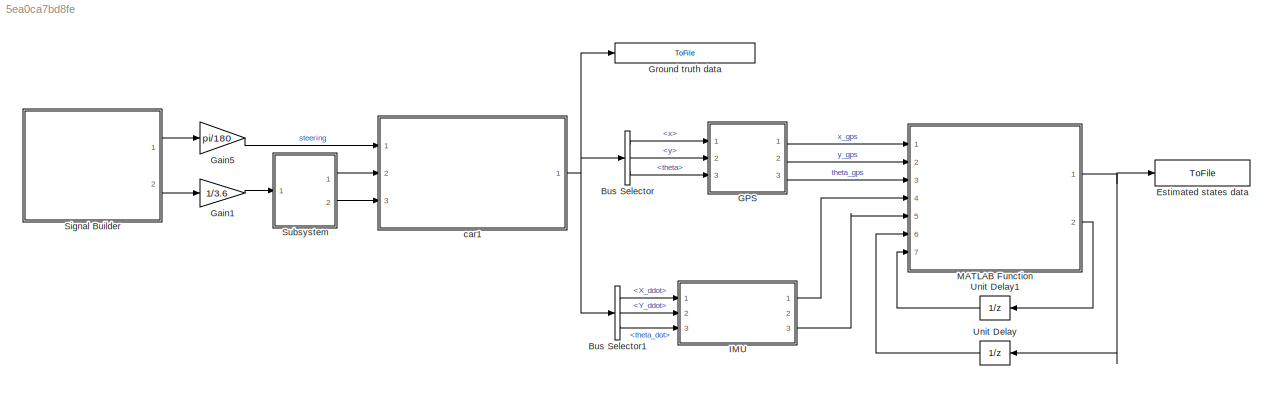
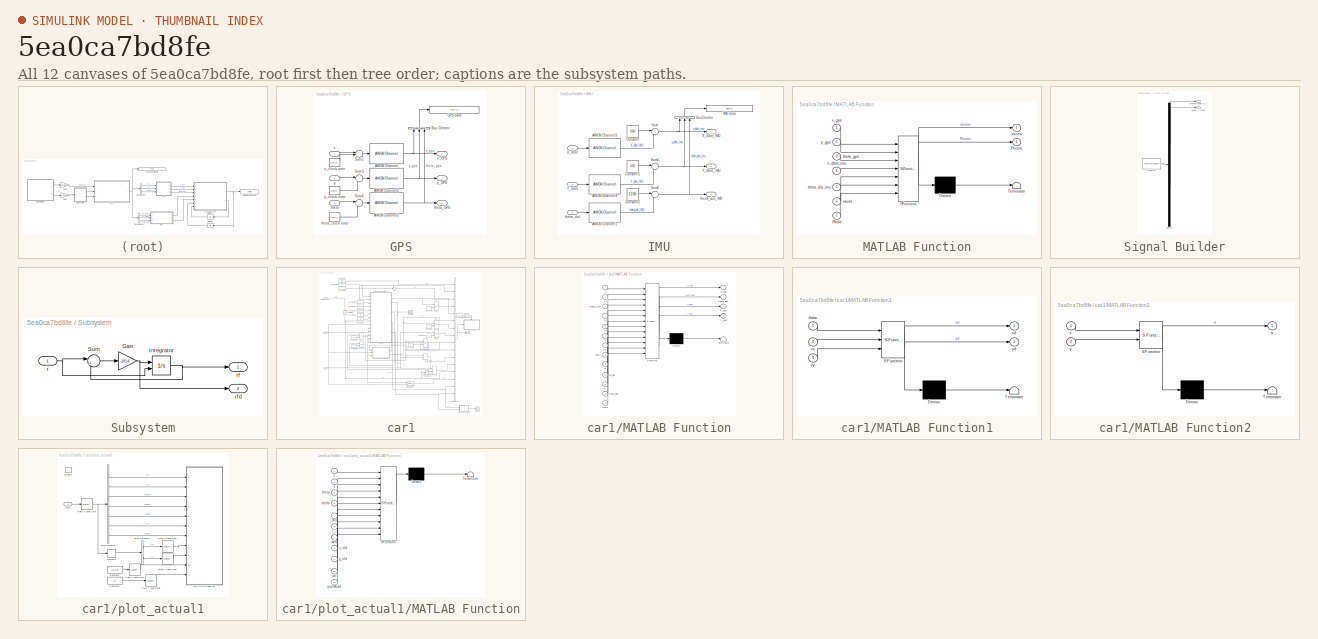
[diagram: thumbnail index - all 12 canvases of the model, root first then tree order]
MODEL slx_5ea0ca7bd8fe
KIND model
CONFIG AbsTol = auto
CONFIG EnableMultiTasking = on
CONFIG FixedStep = 0.1
CONFIG MaxStep = 0.05
CONFIG MinStep = 1e-5
CONFIG RelTol = 1e-6
CONFIG SampleTimeConstraint = Unconstrained
CONFIG Solver = ode45
CONFIG SolverName = ode45
CONFIG StartTime = 0.0
CONFIG StopFcn = run('CTRA_plotter.m');
CONFIG StopTime = 60
WORKSPACE source: MAT-file member
WORKSPACE B = 1.5289
BLOCK [BusSelector] Bus Selector
  OutputAsBus = off
  OutputSignals = x,y,theta
  Ports = [1, 3]
BLOCK [BusSelector] Bus Selector1
  OutputAsBus = off
  OutputSignals = X_ddot,Y_ddot,theta_dot
  Ports = [1, 3]
BLOCK [ToFile] Estimated states data
  Filename = EKF_Estimator.mat
  MatrixName = EKF
  Ports = [1]
  SampleTime = 1/50
  SaveFormat = Timeseries
BLOCK [SubSystem] GPS
  Ports = [3, 3]
  RequestExecContextInheritance = off
BLOCK [Reference] GPS/AWGN Channel  REF=commchan3/AWGN
Channel
  Ports = [1, 1]
  SourceBlock = commchan3/AWGN\nChannel
  SourceProductBaseCode = CM
  SourceProductName = Communications System Toolbox
  SourceType = AWGN Channel
  UserDataPersistent = on
BLOCK [Reference] GPS/AWGN Channel1  REF=commchan3/AWGN
Channel
  Ports = [1, 1]
  SourceBlock = commchan3/AWGN\nChannel
  SourceProductBaseCode = CM
  SourceProductName = Communications System Toolbox
  SourceType = AWGN Channel
  UserDataPersistent = on
BLOCK [Reference] GPS/AWGN Channel2  REF=commchan3/AWGN
Channel
  Ports = [1, 1]
  SourceBlock = commchan3/AWGN\nChannel
  SourceProductBaseCode = CM
  SourceProductName = Communications System Toolbox
  SourceType = AWGN Channel
  UserDataPersistent = on
BLOCK [BusCreator] GPS/Bus Creator
  DisplayOption = bar
  InheritFromInputs = on
  Inputs = 3
  Ports = [3, 1]
BLOCK [ToFile] GPS/GPS data
  Filename = GPS_logfile.mat
  MatrixName = GPS
  Ports = [1]
  SampleTime = 1/50
  SaveFormat = Timeseries
BLOCK [Sum] GPS/Sum2
  IconShape = round
  InputSameDT = off
  Inputs = |+-
  OutDataTypeStr = Inherit: Inherit via internal rule
  Ports = [2, 1]
  SaturateOnIntegerOverflow = off
BLOCK [Sum] GPS/Sum3
  IconShape = round
  InputSameDT = off
  Inputs = |+-
  OutDataTypeStr = Inherit: Inherit via internal rule
  Ports = [2, 1]
  SaturateOnIntegerOverflow = off
BLOCK [Sum] GPS/Sum4
  IconShape = round
  InputSameDT = off
  Inputs = |+-
  OutDataTypeStr = Inherit: Inherit via internal rule
  Ports = [2, 1]
  SaturateOnIntegerOverflow = off
BLOCK [Inport] GPS/theta
  IconDisplay = Port number
  Port = 3
BLOCK [Outport] GPS/theta_GPS
  IconDisplay = Port number
  Port = 3
BLOCK [UniformRandomNumber] GPS/theta_clock error
  Maximum = 1e-9
  Minimum = 0
  SampleTime = 3
BLOCK [Inport] GPS/x
  IconDisplay = Port number
BLOCK [Outport] GPS/x_GPS
  IconDisplay = Port number
BLOCK [UniformRandomNumber] GPS/x_clock error
  Maximum = 1e-9
  Minimum = 0
  SampleTime = 3
BLOCK [Inport] GPS/y
  IconDisplay = Port number
  Port = 2
BLOCK [Outport] GPS/y_GPS
  IconDisplay = Port number
  Port = 2
BLOCK [UniformRandomNumber] GPS/y_clock error
  Maximum = 1e-9
  Minimum = 0
  SampleTime = 3
BLOCK [Gain] Gain1
  Gain = 1/3.6
  OutDataTypeStr = Inherit: Inherit via internal rule
  ParamDataTypeStr = Inherit: Inherit via internal rule
  SaturateOnIntegerOverflow = off
BLOCK [Gain] Gain5
  Gain = pi/180
  OutDataTypeStr = Inherit: Inherit via internal rule
  ParamDataTypeStr = Inherit: Inherit via internal rule
  SaturateOnIntegerOverflow = off
BLOCK [ToFile] Ground truth data
  Filename = groundtruth_logfile.mat
  MatrixName = GNDT
  Ports = [1]
  SampleTime = 1/50
  SaveFormat = Timeseries
BLOCK [SubSystem] IMU
  Ports = [3, 3]
  RequestExecContextInheritance = off
BLOCK [Reference] IMU/AWGN Channel1  REF=commchan3/AWGN
Channel
  Ports = [1, 1]
  SourceBlock = commchan3/AWGN\nChannel
  SourceProductBaseCode = CM
  SourceProductName = Communications System Toolbox
  SourceType = AWGN Channel
  UserDataPersistent = on
BLOCK [Reference] IMU/AWGN Channel3  REF=commchan3/AWGN
Channel
  Ports = [1, 1]
  SourceBlock = commchan3/AWGN\nChannel
  SourceProductBaseCode = CM
  SourceProductName = Communications System Toolbox
  SourceType = AWGN Channel
  UserDataPersistent = on
BLOCK [Reference] IMU/AWGN Channel4  REF=commchan3/AWGN
Channel
  Ports = [1, 1]
  SourceBlock = commchan3/AWGN\nChannel
  SourceProductBaseCode = CM
  SourceProductName = Communications System Toolbox
  SourceType = AWGN Channel
  UserDataPersistent = on
BLOCK [BusCreator] IMU/Bus Creator
  DisplayOption = bar
  InheritFromInputs = on
  Inputs = 3
  Ports = [3, 1]
BLOCK [Constant] IMU/Constant
  Value = 0.04
BLOCK [Constant] IMU/Constant1
  Value = 0.03
BLOCK [Constant] IMU/Constant2
  Value = 0.2/100
BLOCK [ToFile] IMU/IMU data
  Filename = IMU_logfile.mat
  MatrixName = IMU
  Ports = [1]
  SampleTime = 1/50
  SaveFormat = Timeseries
BLOCK [Sum] IMU/Sum
  IconShape = round
  InputSameDT = off
  Inputs = |++
  OutDataTypeStr = Inherit: Inherit via internal rule
  Ports = [2, 1]
  SaturateOnIntegerOverflow = off
BLOCK [Sum] IMU/Sum1
  IconShape = round
  InputSameDT = off
  Inputs = |++
  OutDataTypeStr = Inherit: Inherit via internal rule
  Ports = [2, 1]
  SaturateOnIntegerOverflow = off
BLOCK [Sum] IMU/Sum2
  IconShape = round
  InputSameDT = off
  Inputs = |++
  OutDataTypeStr = Inherit: Inherit via internal rule
  Ports = [2, 1]
  SaturateOnIntegerOverflow = off
BLOCK [Inport] IMU/X_ddot
  IconDisplay = Port number
BLOCK [Outport] IMU/X_ddot_IMU
  IconDisplay = Port number
BLOCK [Inport] IMU/Y_ddot
  IconDisplay = Port number
  Port = 2
BLOCK [Outport] IMU/Y_ddot_IMU
  IconDisplay = Port number
  Port = 2
BLOCK [Inport] IMU/theta_dot
  IconDisplay = Port number
  Port = 3
BLOCK [Outport] IMU/theta_dot_IMU
  IconDisplay = Port number
  Port = 3
BLOCK [SubSystem] MATLAB Function
  ErrorFcn = Stateflow.Translate.translate
  PermitHierarchicalResolution = ExplicitOnly
  Ports = [7, 2]
  RequestExecContextInheritance = off
  SFBlockType = MATLAB Function
  TreatAsAtomicUnit = on
BLOCK [Demux] MATLAB Function/ Demux 
  Outputs = 1
  Ports = [1, 1]
BLOCK [S-Function] MATLAB Function/ SFunction 
  EnableBusSupport = on
  FunctionName = sf_sfun
  PortCounts = [7 3]
  Ports = [7, 3]
  SFcnIsStateOwnerBlock = off
  SFunctionDeploymentMode = off
  Tag = Stateflow S-Function CTRA_LinearBicycle 3
BLOCK [Terminator] MATLAB Function/ Terminator 
BLOCK [Outport] MATLAB Function/Pknew
  IconDisplay = Port number
  Port = 2
BLOCK [Inport] MATLAB Function/Pkold
  IconDisplay = Port number
  Port = 7
BLOCK [Inport] MATLAB Function/theta_dot_imu
  IconDisplay = Port number
  Port = 5
BLOCK [Inport] MATLAB Function/theta_gps
  IconDisplay = Port number
  Port = 3
BLOCK [Inport] MATLAB Function/x_ddot_imu
  IconDisplay = Port number
  Port = 4
BLOCK [Inport] MATLAB Function/x_gps
  IconDisplay = Port number
BLOCK [Outport] MATLAB Function/xknew
  IconDisplay = Port number
BLOCK [Inport] MATLAB Function/xkold
  IconDisplay = Port number
  Port = 6
BLOCK [Inport] MATLAB Function/y_gps
  IconDisplay = Port number
  Port = 2
BLOCK [SubSystem] Signal Builder
  ClipboardFcn = sigbuilder_block('clipboard');
  CloseFcn = sigbuilder_block('close');
  ContinueFcn = sigbuilder_block('continue');
  CopyFcn = sigbuilder_block('copy');
  DeleteFcn = sigbuilder_block('delete');
  LoadFcn = sigbuilder_block('load');
  MaskHideContents = on
  ModelCloseFcn = sigbuilder_block('modelClose');
  NameChangeFcn = sigbuilder_block('namechange');
  OpenFcn = sigbuilder_block('open',[9 6 942 506.25 ]);
  PauseFcn = sigbuilder_block('pause');
  Ports = [0, 2]
  PreSaveFcn = sigbuilder_block('preSave');
  RequestExecContextInheritance = off
  StartFcn = sigbuilder_block('start');
  StopFcn = sigbuilder_block('stop');
  Tag = STV Subsys
BLOCK [Demux] Signal Builder/Demux
  Outputs = 2
  Ports = [1, 2]
  Tag = STV Demux
BLOCK [FromWorkspace] Signal Builder/FromWs
  SampleTime = 0
  Tag = STV FromWs
  VariableName = tuvar
  ZeroCross = on
BLOCK [Outport] Signal Builder/steering angle δ [°]
  IconDisplay = Port number
  Tag = STV Outport
BLOCK [Outport] Signal Builder/velocity v [kph]
  IconDisplay = Port number
  Port = 2
  Tag = STV Outport
BLOCK [SubSystem] Subsystem
  Ports = [1, 2]
  RequestExecContextInheritance = off
BLOCK [Gain] Subsystem/Gain
  Gain = 1/0.4
  OutDataTypeStr = Inherit: Inherit via internal rule
  ParamDataTypeStr = Inherit: Inherit via internal rule
  SaturateOnIntegerOverflow = off
BLOCK [Integrator] Subsystem/Integrator
  InitialConditionSource = external
  Ports = [2, 1]
BLOCK [Sum] Subsystem/Sum
  IconShape = round
  InputSameDT = off
  Inputs = |+-
  OutDataTypeStr = Inherit: Inherit via internal rule
  Ports = [2, 1]
  SaturateOnIntegerOverflow = off
BLOCK [Inport] Subsystem/r
  IconDisplay = Port number
BLOCK [Outport] Subsystem/rf
  IconDisplay = Port number
BLOCK [Outport] Subsystem/rfd
  IconDisplay = Port number
  Port = 2
BLOCK [UnitDelay] Unit Delay
  InitialCondition = [0, 0, 0.1, 1, 0.1, 0]'
  InputProcessing = Elements as channels (sample based)
  SampleTime = -1
BLOCK [UnitDelay] Unit Delay1
  InitialCondition = diag([1000000, 1000000, 10, 10, 10, 10],0)
  InputProcessing = Elements as channels (sample based)
  SampleTime = -1
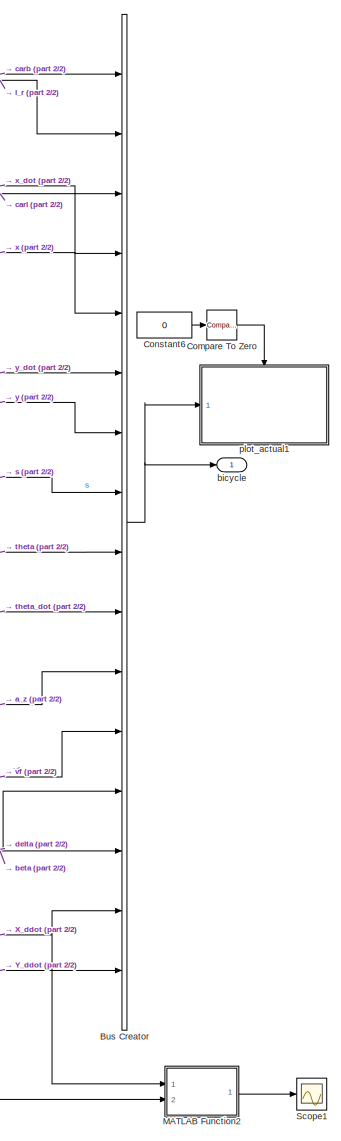
[diagram: car1 - part 1/2, right side, full height]
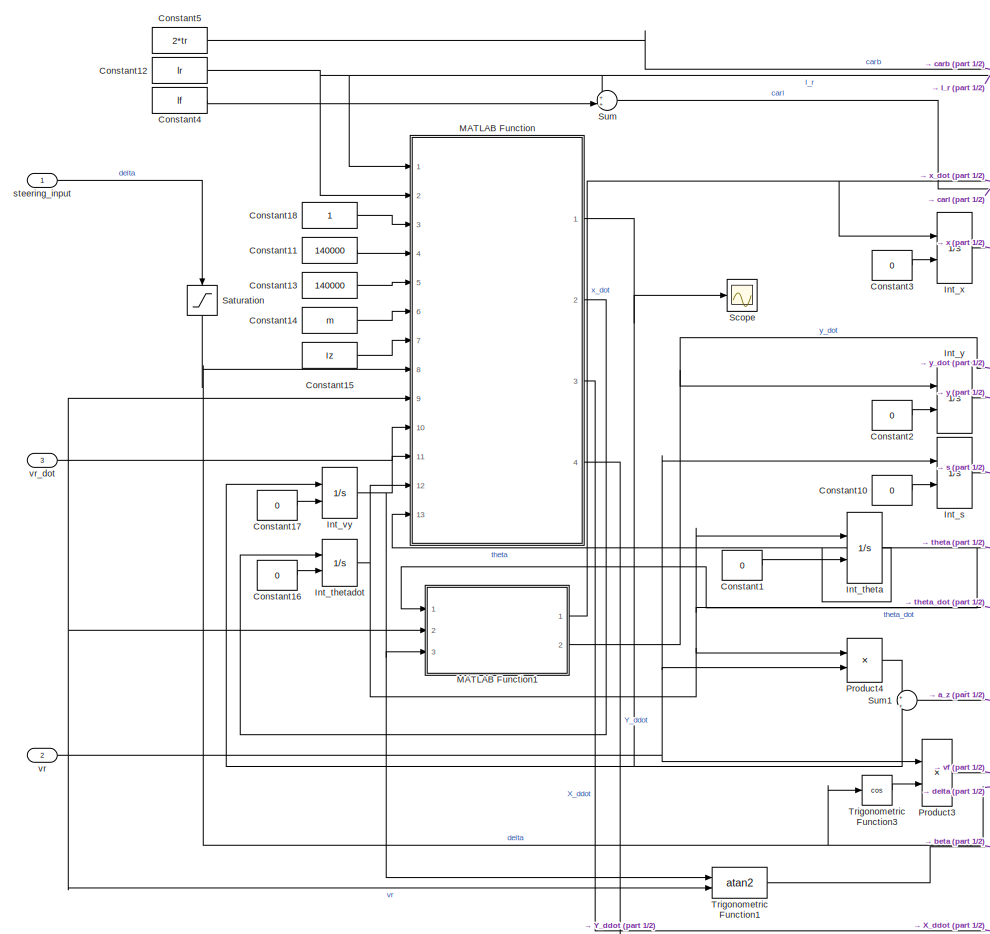
[diagram: car1 - part 2/2, most of the canvas]
BLOCK [SubSystem] car1
  Ports = [3, 1]
  RequestExecContextInheritance = off
BLOCK [BusCreator] car1/Bus Creator
  DisplayOption = bar
  InheritFromInputs = on
  Inputs = 16
  Ports = [16, 1]
BLOCK [Reference] car1/Compare To Zero  REF=simulink/Logic and Bit
Operations/Compare
To Zero
  Ports = [1, 1]
  SourceBlock = simulink/Logic and Bit\nOperations/Compare\nTo Zero
  SourceProductBaseCode = SL
  SourceProductName = Simulink
  SourceType = Compare To Zero
BLOCK [Constant] car1/Constant1
  Value = 0
BLOCK [Constant] car1/Constant10
  Value = 0
BLOCK [Constant] car1/Constant11
  Value = 140000
BLOCK [Constant] car1/Constant12
  Value = lr
BLOCK [Constant] car1/Constant13
  Value = 140000
BLOCK [Constant] car1/Constant14
  Value = m
BLOCK [Constant] car1/Constant15
  Value = Iz
BLOCK [Constant] car1/Constant16
  Value = 0
BLOCK [Constant] car1/Constant17
  Value = 0
BLOCK [Constant] car1/Constant18
BLOCK [Constant] car1/Constant2
  Value = 0
BLOCK [Constant] car1/Constant3
  Value = 0
BLOCK [Constant] car1/Constant4
  Value = lf
BLOCK [Constant] car1/Constant5
  Value = 2*tr
BLOCK [Constant] car1/Constant6
  Value = 0
BLOCK [Integrator] car1/Int_s
  InitialConditionSource = external
  Ports = [2, 1]
BLOCK [Integrator] car1/Int_theta
  InitialConditionSource = external
  Ports = [2, 1]
BLOCK [Integrator] car1/Int_thetadot
  InitialConditionSource = external
  Ports = [2, 1]
BLOCK [Integrator] car1/Int_vy
  InitialConditionSource = external
  Ports = [2, 1]
BLOCK [Integrator] car1/Int_x
  InitialConditionSource = external
  Ports = [2, 1]
BLOCK [Integrator] car1/Int_y
  InitialConditionSource = external
  Ports = [2, 1]
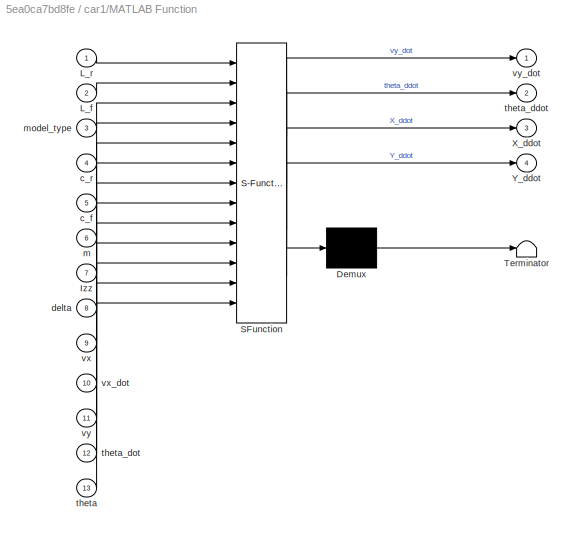
BLOCK [SubSystem] car1/MATLAB Function
  ErrorFcn = Stateflow.Translate.translate
  PermitHierarchicalResolution = ExplicitOnly
  Ports = [13, 4]
  RequestExecContextInheritance = off
  SFBlockType = MATLAB Function
  TreatAsAtomicUnit = on
BLOCK [Demux] car1/MATLAB Function/ Demux 
  Outputs = 1
  Ports = [1, 1]
BLOCK [S-Function] car1/MATLAB Function/ SFunction 
  EnableBusSupport = on
  FunctionName = sf_sfun
  PortCounts = [13 5]
  Ports = [13, 5]
  SFcnIsStateOwnerBlock = off
  SFunctionDeploymentMode = off
  Tag = Stateflow S-Function CTRA_LinearBicycle 1
BLOCK [Terminator] car1/MATLAB Function/ Terminator 
BLOCK [Inport] car1/MATLAB Function/Izz
  IconDisplay = Port number
  Port = 7
BLOCK [Inport] car1/MATLAB Function/L_f
  IconDisplay = Port number
  Port = 2
BLOCK [Inport] car1/MATLAB Function/L_r
  IconDisplay = Port number
BLOCK [Outport] car1/MATLAB Function/X_ddot
  IconDisplay = Port number
  Port = 3
BLOCK [Outport] car1/MATLAB Function/Y_ddot
  IconDisplay = Port number
  Port = 4
BLOCK [Inport] car1/MATLAB Function/c_f
  IconDisplay = Port number
  Port = 5
BLOCK [Inport] car1/MATLAB Function/c_r
  IconDisplay = Port number
  Port = 4
BLOCK [Inport] car1/MATLAB Function/delta
  IconDisplay = Port number
  Port = 8
BLOCK [Inport] car1/MATLAB Function/m
  IconDisplay = Port number
  Port = 6
BLOCK [Inport] car1/MATLAB Function/model_type
  IconDisplay = Port number
  Port = 3
BLOCK [Inport] car1/MATLAB Function/theta
  IconDisplay = Port number
  Port = 13
BLOCK [Outport] car1/MATLAB Function/theta_ddot
  IconDisplay = Port number
  Port = 2
BLOCK [Inport] car1/MATLAB Function/theta_dot
  IconDisplay = Port number
  Port = 12
BLOCK [Inport] car1/MATLAB Function/vx
  IconDisplay = Port number
  Port = 9
BLOCK [Inport] car1/MATLAB Function/vx_dot
  IconDisplay = Port number
  Port = 10
BLOCK [Inport] car1/MATLAB Function/vy
  IconDisplay = Port number
  Port = 11
BLOCK [Outport] car1/MATLAB Function/vy_dot
  IconDisplay = Port number
BLOCK [SubSystem] car1/MATLAB Function1
  ErrorFcn = Stateflow.Translate.translate
  PermitHierarchicalResolution = ExplicitOnly
  Ports = [3, 2]
  RequestExecContextInheritance = off
  SFBlockType = MATLAB Function
  TreatAsAtomicUnit = on
BLOCK [Demux] car1/MATLAB Function1/ Demux 
  Outputs = 1
  Ports = [1, 1]
BLOCK [S-Function] car1/MATLAB Function1/ SFunction 
  EnableBusSupport = on
  FunctionName = sf_sfun
  PortCounts = [3 3]
  Ports = [3, 3]
  SFcnIsStateOwnerBlock = off
  SFunctionDeploymentMode = off
  Tag = Stateflow S-Function CTRA_LinearBicycle 2
BLOCK [Terminator] car1/MATLAB Function1/ Terminator 
BLOCK [Inport] car1/MATLAB Function1/theta
  IconDisplay = Port number
BLOCK [Inport] car1/MATLAB Function1/vx
  IconDisplay = Port number
  Port = 2
BLOCK [Inport] car1/MATLAB Function1/vy
  IconDisplay = Port number
  Port = 3
BLOCK [Outport] car1/MATLAB Function1/xd
  IconDisplay = Port number
BLOCK [Outport] car1/MATLAB Function1/yd
  IconDisplay = Port number
  Port = 2
BLOCK [SubSystem] car1/MATLAB Function2
  ErrorFcn = Stateflow.Translate.translate
  PermitHierarchicalResolution = ExplicitOnly
  Ports = [2, 1]
  RequestExecContextInheritance = off
  SFBlockType = MATLAB Function
  TreatAsAtomicUnit = on
BLOCK [Demux] car1/MATLAB Function2/ Demux 
  Outputs = 1
  Ports = [1, 1]
BLOCK [S-Function] car1/MATLAB Function2/ SFunction 
  EnableBusSupport = on
  FunctionName = sf_sfun
  PortCounts = [2 2]
  Ports = [2, 2]
  SFcnIsStateOwnerBlock = off
  SFunctionDeploymentMode = off
  Tag = Stateflow S-Function CTRA_LinearBicycle 5
BLOCK [Terminator] car1/MATLAB Function2/ Terminator 
BLOCK [Outport] car1/MATLAB Function2/a
  IconDisplay = Port number
BLOCK [Inport] car1/MATLAB Function2/x
  IconDisplay = Port number
BLOCK [Inport] car1/MATLAB Function2/y
  IconDisplay = Port number
  Port = 2
BLOCK [Product] car1/Product3
  InputSameDT = off
  Inputs = */
  OutDataTypeStr = Inherit: Inherit via internal rule
  Ports = [2, 1]
  RndMeth = Floor
  SaturateOnIntegerOverflow = off
BLOCK [Product] car1/Product4
  InputSameDT = off
  OutDataTypeStr = Inherit: Inherit via internal rule
  Ports = [2, 1]
  RndMeth = Floor
  SaturateOnIntegerOverflow = off
BLOCK [Saturate] car1/Saturation
  InputPortMap = u0
  LowerLimit = -pi/8
  Ports = [1, 1]
  UpperLimit = pi/8
BLOCK [Scope] car1/Scope
  Floating = off
  NumInputPorts = 1
  Ports = [1]
  ScopeSpecificationString = Simulink.scopes.TimeScopeBlockCfg('CurrentConfiguration', extmgr.ConfigurationSet(extmgr.Configuration('Core','General UI',true),extmgr.Configuration('Core','Source UI',true),extmgr.Configuration('Sources','WiredSimulink',true),extmgr.Configuration('Visuals','Time Domain',true,'SerializedDisplays',{struct('MinYLimReal','-0.0112','MaxYLimReal','-0.00143','YLabelReal','','MinYLimMag','0.00000','MaxY...<+1411ch>
BLOCK [Scope] car1/Scope1
  Floating = off
  NumInputPorts = 1
  Ports = [1]
  ScopeSpecificationString = Simulink.scopes.TimeScopeBlockCfg('CurrentConfiguration', extmgr.ConfigurationSet(extmgr.Configuration('Core','General UI',true),extmgr.Configuration('Core','Source UI',true),extmgr.Configuration('Sources','WiredSimulink',true,'DataLoggingVariableName','ScopeData1'),extmgr.Configuration('Visuals','Time Domain',true,'SerializedDisplays',{struct('MinYLimReal','-44.83422','MaxYLimReal','403.66573','Y...<+1756ch>
BLOCK [Sum] car1/Sum
  IconShape = round
  InputSameDT = off
  Inputs = ++|
  OutDataTypeStr = Inherit: Inherit via internal rule
  Ports = [2, 1]
  SaturateOnIntegerOverflow = off
BLOCK [Sum] car1/Sum1
  IconShape = round
  InputSameDT = off
  Inputs = +|+
  OutDataTypeStr = Inherit: Inherit via internal rule
  Ports = [2, 1]
  SaturateOnIntegerOverflow = off
BLOCK [Trigonometry] car1/Trigonometric Function1
  Operator = atan2
  Ports = [2, 1]
BLOCK [Trigonometry] car1/Trigonometric Function3
  Operator = cos
  Ports = [1, 1]
BLOCK [Outport] car1/bicycle
  IconDisplay = Port number
BLOCK [SubSystem] car1/plot_actual1
  Ports = [1, 0, 1]
  RequestExecContextInheritance = off
BLOCK [BusSelector] car1/plot_actual1/Bus Selector
  OutputAsBus = off
  OutputSignals = x,y,theta,delta,carl,l_r,carb
  Ports = [1, 7]
BLOCK [BusSelector] car1/plot_actual1/Bus Selector1
  OutputAsBus = off
  OutputSignals = x,y
  Ports = [1, 2]
BLOCK [Constant] car1/plot_actual1/Constant1
BLOCK [Constant] car1/plot_actual1/Constant7
  Value = [0,1,0]
BLOCK [EnablePort] car1/plot_actual1/Enable
  Ports = []
BLOCK [SubSystem] car1/plot_actual1/MATLAB Function
  ErrorFcn = Stateflow.Translate.translate
  PermitHierarchicalResolution = ExplicitOnly
  Ports = [11]
  RequestExecContextInheritance = off
  SFBlockType = MATLAB Function
  TreatAsAtomicUnit = on
BLOCK [Demux] car1/plot_actual1/MATLAB Function/ Demux 
  Outputs = 1
  Ports = [1, 1]
BLOCK [S-Function] car1/plot_actual1/MATLAB Function/ SFunction 
  EnableBusSupport = on
  FunctionName = sf_sfun
  PortCounts = [11 1]
  Ports = [11, 1]
  SFcnIsStateOwnerBlock = off
  SFunctionDeploymentMode = off
  Tag = Stateflow S-Function CTRA_LinearBicycle 4
BLOCK [Terminator] car1/plot_actual1/MATLAB Function/ Terminator 
BLOCK [Inport] car1/plot_actual1/MATLAB Function/carb
  IconDisplay = Port number
  Port = 7
BLOCK [Inport] car1/plot_actual1/MATLAB Function/carl
  IconDisplay = Port number
  Port = 5
BLOCK [Inport] car1/plot_actual1/MATLAB Function/col
  IconDisplay = Port number
  Port = 10
BLOCK [Inport] car1/plot_actual1/MATLAB Function/delta
  IconDisplay = Port number
  Port = 4
BLOCK [Inport] car1/plot_actual1/MATLAB Function/l_r
  IconDisplay = Port number
  Port = 6
BLOCK [Inport] car1/plot_actual1/MATLAB Function/plotMode
  IconDisplay = Port number
  Port = 11
BLOCK [Inport] car1/plot_actual1/MATLAB Function/theta
  IconDisplay = Port number
  Port = 3
BLOCK [Inport] car1/plot_actual1/MATLAB Function/x
  IconDisplay = Port number
BLOCK [Inport] car1/plot_actual1/MATLAB Function/x_old
  IconDisplay = Port number
  Port = 8
BLOCK [Inport] car1/plot_actual1/MATLAB Function/y
  IconDisplay = Port number
  Port = 2
BLOCK [Inport] car1/plot_actual1/MATLAB Function/y_old
  IconDisplay = Port number
  Port = 9
BLOCK [Memory] car1/plot_actual1/Memory2
BLOCK [RateTransition] car1/plot_actual1/Rate Transition1
  OutPortSampleTime = dt
BLOCK [RateTransition] car1/plot_actual1/Rate Transition2
  OutPortSampleTime = dt
BLOCK [RateTransition] car1/plot_actual1/Rate Transition3
  OutPortSampleTime = dt
BLOCK [RateTransition] car1/plot_actual1/Rate Transition4
  OutPortSampleTime = dt
BLOCK [RateTransition] car1/plot_actual1/Rate Transition5
  OutPortSampleTime = dt
BLOCK [Inport] car1/plot_actual1/road
  IconDisplay = Port number
BLOCK [Inport] car1/steering_input
  IconDisplay = Port number
BLOCK [Inport] car1/vr
  IconDisplay = Port number
  Port = 2
BLOCK [Inport] car1/vr_dot
  IconDisplay = Port number
  Port = 3
LINE Bus Selector1:1 -> IMU:1
LINE Bus Selector1:2 -> IMU:2
LINE Bus Selector1:3 -> IMU:3
LINE Bus Selector:1 -> GPS:1
LINE Bus Selector:2 -> GPS:2
LINE Bus Selector:3 -> GPS:3
NET GPS/AWGN Channel1:1 -> GPS/Bus Creator:2, GPS/y_GPS:1
NET GPS/AWGN Channel2:1 -> GPS/Bus Creator:3, GPS/theta_GPS:1
NET GPS/AWGN Channel:1 -> GPS/Bus Creator:1, GPS/x_GPS:1
LINE GPS/Bus Creator:1 -> GPS/GPS data:1
LINE GPS/Sum2:1 -> GPS/AWGN Channel:1
LINE GPS/Sum3:1 -> GPS/AWGN Channel1:1
LINE GPS/Sum4:1 -> GPS/AWGN Channel2:1
LINE GPS/theta:1 -> GPS/Sum4:1
LINE GPS/theta_clock error:1 -> GPS/Sum4:2
LINE GPS/x:1 -> GPS/Sum2:1
LINE GPS/x_clock error:1 -> GPS/Sum2:2
LINE GPS/y:1 -> GPS/Sum3:1
LINE GPS/y_clock error:1 -> GPS/Sum3:2
LINE GPS:1 -> MATLAB Function:1
LINE GPS:2 -> MATLAB Function:2
LINE GPS:3 -> MATLAB Function:3
LINE Gain1:1 -> Subsystem:1
LINE Gain5:1 -> car1:1
LINE IMU/AWGN Channel1:1 -> IMU/Sum2:2
LINE IMU/AWGN Channel3:1 -> IMU/Sum:2
LINE IMU/AWGN Channel4:1 -> IMU/Sum1:2
LINE IMU/Bus Creator:1 -> IMU/IMU data:1
LINE IMU/Constant1:1 -> IMU/Sum1:1
LINE IMU/Constant2:1 -> IMU/Sum2:1
LINE IMU/Constant:1 -> IMU/Sum:1
NET IMU/Sum1:1 -> IMU/Bus Creator:2, IMU/Y_ddot_IMU:1
NET IMU/Sum2:1 -> IMU/Bus Creator:3, IMU/theta_dot_IMU:1
NET IMU/Sum:1 -> IMU/Bus Creator:1, IMU/X_ddot_IMU:1
LINE IMU/X_ddot:1 -> IMU/AWGN Channel3:1
LINE IMU/Y_ddot:1 -> IMU/AWGN Channel4:1
LINE IMU/theta_dot:1 -> IMU/AWGN Channel1:1
LINE IMU:1 -> MATLAB Function:4
LINE IMU:3 -> MATLAB Function:5
NET MATLAB Function:1 -> Estimated states data:1, Unit Delay:1
LINE MATLAB Function:2 -> Unit Delay1:1
LINE Signal Builder:1 -> Gain5:1
LINE Signal Builder:2 -> Gain1:1
NET Subsystem/Gain:1 -> Subsystem/Integrator:1, Subsystem/rfd:1
NET Subsystem/Integrator:1 -> Subsystem/Sum:2, Subsystem/rf:1
LINE Subsystem/Sum:1 -> Subsystem/Gain:1
NET Subsystem/r:1 -> Subsystem/Integrator:2, Subsystem/Sum:1
LINE Subsystem:1 -> car1:2
LINE Subsystem:2 -> car1:3
LINE Unit Delay1:1 -> MATLAB Function:7
LINE Unit Delay:1 -> MATLAB Function:6
NET car1/Bus Creator:1 -> car1/bicycle:1, car1/plot_actual1:1
LINE car1/Compare To Zero:1 -> car1/plot_actual1:enable
LINE car1/Constant10:1 -> car1/Int_s:2
LINE car1/Constant11:1 -> car1/MATLAB Function:4
NET car1/Constant12:1 -> car1/Bus Creator:2, car1/MATLAB Function:1, car1/MATLAB Function:2, car1/Sum:1
LINE car1/Constant13:1 -> car1/MATLAB Function:5
LINE car1/Constant14:1 -> car1/MATLAB Function:6
LINE car1/Constant15:1 -> car1/MATLAB Function:7
LINE car1/Constant16:1 -> car1/Int_thetadot:2
LINE car1/Constant17:1 -> car1/Int_vy:2
LINE car1/Constant18:1 -> car1/MATLAB Function:3
LINE car1/Constant1:1 -> car1/Int_theta:2
LINE car1/Constant2:1 -> car1/Int_y:2
LINE car1/Constant3:1 -> car1/Int_x:2
LINE car1/Constant4:1 -> car1/Sum:2
LINE car1/Constant5:1 -> car1/Bus Creator:1
LINE car1/Constant6:1 -> car1/Compare To Zero:1
LINE car1/Int_s:1 -> car1/Bus Creator:8
NET car1/Int_theta:1 -> car1/Bus Creator:9, car1/MATLAB Function1:1, car1/MATLAB Function:13
NET car1/Int_thetadot:1 -> car1/Bus Creator:10, car1/Int_theta:1, car1/MATLAB Function:12, car1/Product4:1
NET car1/Int_vy:1 -> car1/MATLAB Function1:3, car1/MATLAB Function:11, car1/Trigonometric Function1:1
LINE car1/Int_x:1 -> car1/Bus Creator:5
LINE car1/Int_y:1 -> car1/Bus Creator:7
NET car1/MATLAB Function1:1 -> car1/Bus Creator:4, car1/Int_x:1
NET car1/MATLAB Function1:2 -> car1/Bus Creator:6, car1/Int_y:1
LINE car1/MATLAB Function2:1 -> car1/Scope1:1
NET car1/MATLAB Function:1 -> car1/Int_vy:1, car1/Scope:1, car1/Sum1:2
LINE car1/MATLAB Function:2 -> car1/Int_thetadot:1
NET car1/MATLAB Function:3 -> car1/Bus Creator:15, car1/MATLAB Function2:1
NET car1/MATLAB Function:4 -> car1/Bus Creator:16, car1/MATLAB Function2:2
LINE car1/Product3:1 -> car1/Bus Creator:12
LINE car1/Product4:1 -> car1/Sum1:1
NET car1/Saturation:1 -> car1/Bus Creator:13, car1/MATLAB Function:8, car1/Trigonometric Function3:1
LINE car1/Sum1:1 -> car1/Bus Creator:11
LINE car1/Sum:1 -> car1/Bus Creator:3
LINE car1/Trigonometric Function1:1 -> car1/Bus Creator:14
LINE car1/Trigonometric Function3:1 -> car1/Product3:2
LINE car1/plot_actual1/Bus Selector1:1 -> car1/plot_actual1/Rate Transition1:1
LINE car1/plot_actual1/Bus Selector1:2 -> car1/plot_actual1/Rate Transition2:1
LINE car1/plot_actual1/Bus Selector:1 -> car1/plot_actual1/MATLAB Function:1
LINE car1/plot_actual1/Bus Selector:2 -> car1/plot_actual1/MATLAB Function:2
LINE car1/plot_actual1/Bus Selector:3 -> car1/plot_actual1/MATLAB Function:3
LINE car1/plot_actual1/Bus Selector:4 -> car1/plot_actual1/MATLAB Function:4
LINE car1/plot_actual1/Bus Selector:5 -> car1/plot_actual1/MATLAB Function:5
LINE car1/plot_actual1/Bus Selector:6 -> car1/plot_actual1/MATLAB Function:6
LINE car1/plot_actual1/Bus Selector:7 -> car1/plot_actual1/MATLAB Function:7
LINE car1/plot_actual1/Constant1:1 -> car1/plot_actual1/Rate Transition5:1
LINE car1/plot_actual1/Constant7:1 -> car1/plot_actual1/Rate Transition3:1
LINE car1/plot_actual1/Memory2:1 -> car1/plot_actual1/Bus Selector1:1
LINE car1/plot_actual1/Rate Transition1:1 -> car1/plot_actual1/MATLAB Function:8
LINE car1/plot_actual1/Rate Transition2:1 -> car1/plot_actual1/MATLAB Function:9
LINE car1/plot_actual1/Rate Transition3:1 -> car1/plot_actual1/MATLAB Function:10
NET car1/plot_actual1/Rate Transition4:1 -> car1/plot_actual1/Bus Selector:1, car1/plot_actual1/Memory2:1
LINE car1/plot_actual1/Rate Transition5:1 -> car1/plot_actual1/MATLAB Function:11
LINE car1/plot_actual1/road:1 -> car1/plot_actual1/Rate Transition4:1
LINE car1/steering_input:1 -> car1/Saturation:1
NET car1/vr:1 -> car1/Int_s:1, car1/MATLAB Function1:2, car1/MATLAB Function:9, car1/Product3:1, car1/Product4:2, car1/Trigonometric Function1:2
LINE car1/vr_dot:1 -> car1/MATLAB Function:10
NET car1:1 -> Bus Selector1:1, Bus Selector:1, Ground truth data:1
note: NET lines group one-source signal fan-out (src -> all destinations, sorted); 1:1 wires keep LINE
CHART car1/MATLAB Function states=1 transitions=1
  STATE_LABEL 'eML_blk_kernel()'
  STATE_LABEL 'SCRIPT:\nfunction [ vy_dot, theta_ddot, X_ddot, Y_ddot] = dynCar(L_r, L_f, model_type, c_r, c_f, m,...\n                                       Izz, delta, vx, vx_dot, vy, theta_dot, theta)\n%#codegen\nif abs(vx) < 0.01\n    model_type=0;\nend\n\nswitch model_type\n    case 1 % linearized Model   \n        A = [ -(c_f+c_r)/(vx*m),  (-c_f*L_f+c_r*L_r)/(vx*m) - vx;...\n               (-c_f*L_f+c_r*L_r)/(Izz*vx)...<+603ch>'
CHART car1/MATLAB Function1 states=1 transitions=1
  STATE_LABEL 'eML_blk_kernel()'
  STATE_LABEL 'SCRIPT:\nfunction [ xd, yd] = dynCar( theta,vx, vy )\n%#codegen\n\nR = [cos(theta), -sin(theta); sin(theta), cos(theta)];\nxd = R(1,:)*[vx;vy];\nyd = R(2,:)*[vx;vy];\nend'
CHART MATLAB Function states=1 transitions=1
  STATE_LABEL 'eML_blk_kernel()'
  STATE_LABEL "SCRIPT:\nfunction [xknew, Pknew] = EKF(x_gps, y_gps, theta_gps, x_ddot_imu, theta_dot_imu, xkold, Pkold)\n\nclose all\n\n%Sampling time T for f = 50 Hz\nT = 1/50; \n\n%Assigning states using state vector\nx = xkold(1);\ny = xkold(2);\ntheta = xkold(3);\nv = xkold(4);\ntheta_dot = xkold(5);\na = xkold(6);\n\n\n%Measurement vector [z]\n%z = [x_gps y_gps theta_gps x_ddot_imu y_ddot_imu theta_dot_imu]';\nz = [x_gps y_gp...<+3544ch>"
CHART car1/plot_actual1/MATLAB Function states=1 transitions=1
  STATE_LABEL 'eML_blk_kernel()'
  STATE_LABEL "SCRIPT:\nfunction fcn( x, y, theta,delta,carl,l_r, carb, x_old, y_old, col, plotMode)\n%#codegen\ncoder.extrinsic('delete');\nfh = figure(1);\nhold on; box on; grid on;\nxlim([x-100,x+100]);\nylim([y-100,y+100]);\naxis equal\n\nR    = [ cos(theta), -sin(theta);...\n         sin(theta), cos(theta)];   \n           \nplot([x_old,x],[y_old,y],'Color',col);\nplot(x,y,'.','Color',col);\n         \ncarx = [-l_r, carl-l...<+873ch>"
CHART car1/MATLAB Function2 states=1 transitions=1
  STATE_LABEL 'eML_blk_kernel()'
  STATE_LABEL 'SCRIPT:\nfunction a = fcn(x,y)\n\na = sqrt(x^2+y^2);\n\nend'
